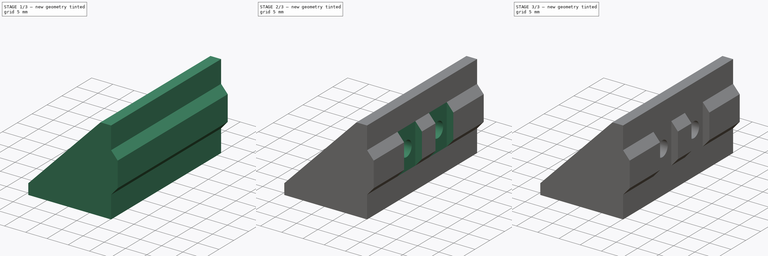
[diagram: build sequence overview — one tinted view per stage of 3, left to right]
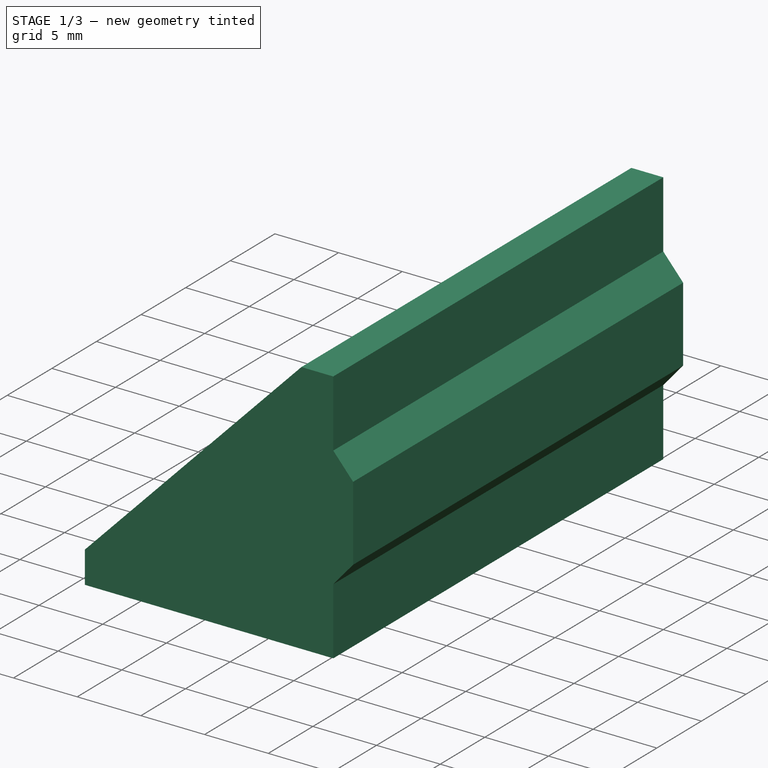
[diagram: stage 1 of 3 — iso view after this stage's code; geometry added in this stage tinted green]
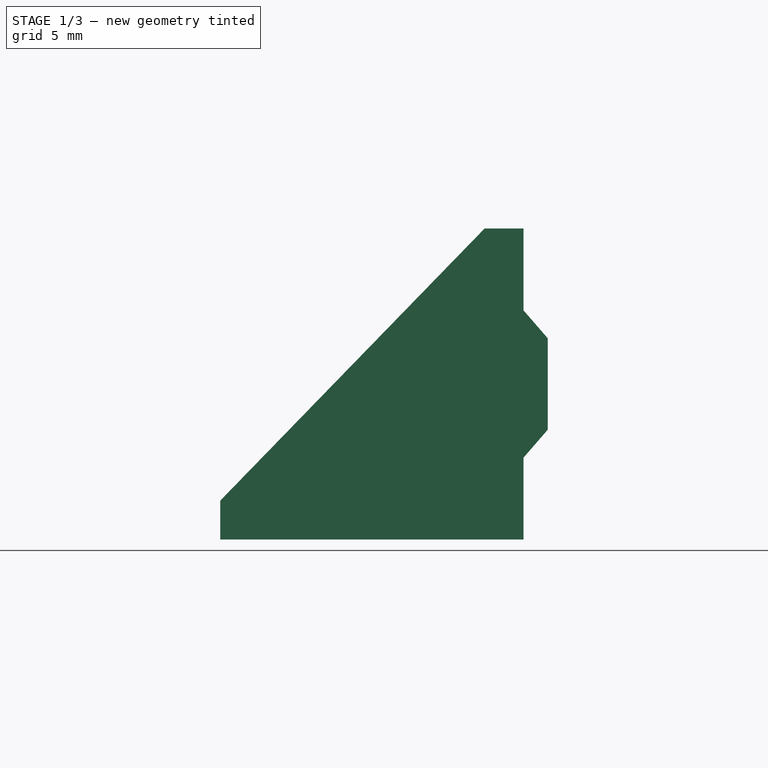
[diagram: stage 1 of 3 — front view after this stage's code; geometry added in this stage tinted green]
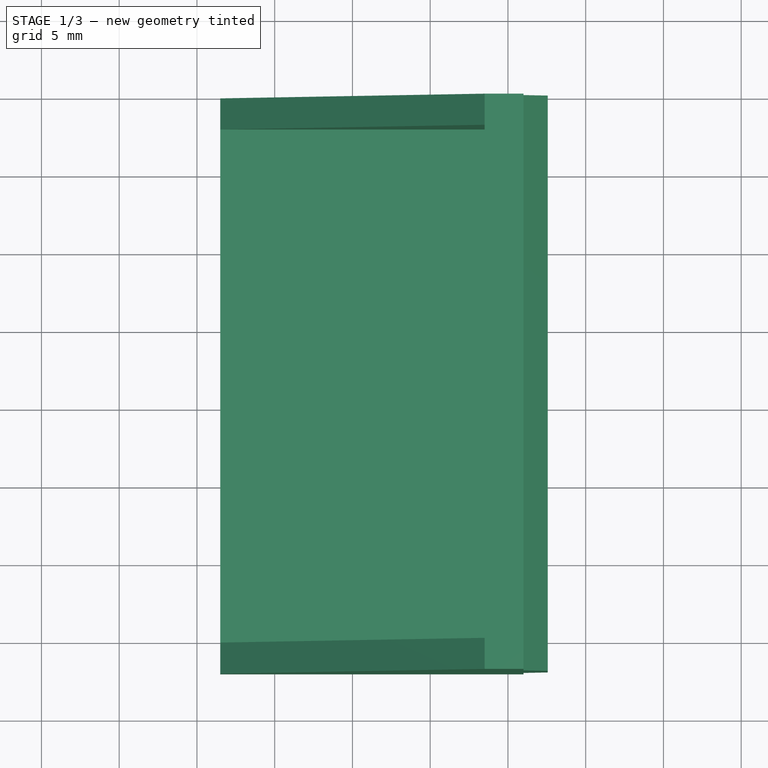
[diagram: stage 1 of 3 — top view after this stage's code; geometry added in this stage tinted green]
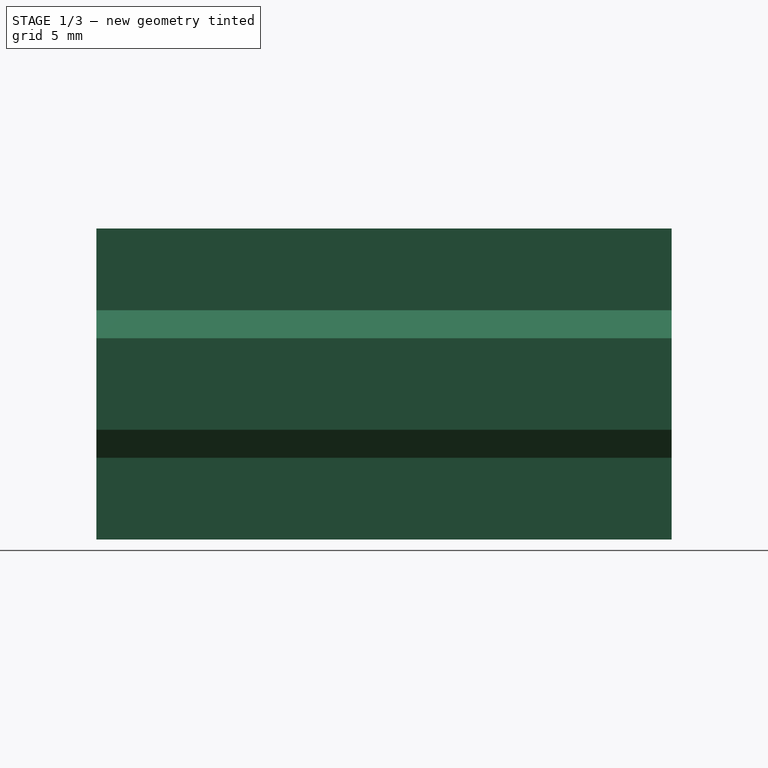
[diagram: stage 1 of 3 — right view after this stage's code; geometry added in this stage tinted green]
FCSTD DOCUMENT  (FreeCAD 0.21R33771 (Git))
Label: base-fixa-20-P2
License: All rights reserved
LicenseURL: https://en.wikipedia.org/wiki/All_rights_reserved
objects: Sketcher::SketchObject×8, PartDesign::Pocket×5, PartDesign::Pad×2, PartDesign::Fillet×1, PartDesign::Body×1
note: 25 computed .brp shape members not serialized (recipe doc carries the construction recipe); baked Part::Feature solids carry a one-line shape summary decoded from their .brp

FEATURE [Sketcher::SketchObject] Sketch
  FullyConstrained = true
  MapMode = 5
  Placement = pos=(0,0,0) rot=(1,0,0;1.5708rad)
  Support = -> [XZ_Plane]
  sketch-geometry (11):
    g0: LineSegment StartX=-8.5 StartY=-7.5 StartZ=0 EndX=-8.5 EndY=-10 EndZ=0
    g1: LineSegment StartX=-8.5 StartY=-10 StartZ=0 EndX=11 EndY=-10 EndZ=0
    g2: LineSegment StartX=11 StartY=-10 StartZ=0 EndX=11 EndY=10 EndZ=0
    g3: LineSegment StartX=11 StartY=10 StartZ=0 EndX=8.5 EndY=10 EndZ=0
    g4: LineSegment StartX=-8.5 StartY=-7.5 StartZ=0 EndX=8.5 EndY=-7.5 EndZ=0
    g5: LineSegment StartX=8.5 StartY=-7.5 StartZ=0 EndX=8.5 EndY=10 EndZ=0
    g6: LineSegment StartX=11 StartY=10 StartZ=0 EndX=11 EndY=4.74 EndZ=0
    g7: LineSegment StartX=11 StartY=4.74 StartZ=0 EndX=12.56 EndY=2.94 EndZ=0
    g8: LineSegment StartX=12.56 StartY=2.94 StartZ=0 EndX=12.56 EndY=-2.94 EndZ=0
    g9: LineSegment StartX=12.56 StartY=-2.94 StartZ=0 EndX=11 EndY=-4.74 EndZ=0
    g10: LineSegment StartX=11 StartY=-4.74 StartZ=0 EndX=11 EndY=-10 EndZ=0
  constraints (29):
    c: Vertical(g0)
    c: Coincident(g0,g1)
    c: Horizontal(g1)
    c: Coincident(g1,g2)
    c: Coincident(g2,g3)
    c: Horizontal(g3)
    c: Coincident(g0,g4)
    c: Coincident(g4,g5)
    c: Coincident(g5,g3)
    c: Vertical(g5)
    c: Symmetric(g1,g2,g-1)
    c: Symmetric(g0,g4,g-2)
    c: Equal(g0,g3)
    c: DistanceX(g3,g3) = 2.5
    c: DistanceY(g2,g2) = 20
    c: DistanceX(g4,g4) = 17
    c: Coincident(g3,g6)
    c: Coincident(g6,g7)
    c: Coincident(g7,g8)
    c: Coincident(g8,g9)
    c: Coincident(g9,g10)
    c: Coincident(g10,g1)
    c: Equal(g10,g6)
    c: Vertical(g10)
    c: Vertical(g6)
    c: Symmetric(g8,g7,g-1)
    c: DistanceY(g9,g6) = 9.48
    c: DistanceY(g8,g8) = 5.88
    c: DistanceX(g9,g8) = 1.56
FEATURE [PartDesign::Pad] Pad
  Direction = (0,-1,2e-16)
  Length = 37
  Length2 = 10
  Placement = pos=(0,0,0) rot=(1,0,0;1.5708rad)
  Profile = -> Sketch
  ReferenceAxis = -> Sketch [N_Axis]
  Type = 0
FEATURE [Sketcher::SketchObject] Sketch001
  ExternalGeometry = -> [Pad]
  FullyConstrained = true
  MapMode = 5
  Placement = pos=(0,-37,8.1e-15) rot=(1,0,0;1.5708rad)
  Support = -> [Pad]
  sketch-geometry (3):
    g0: LineSegment StartX=8.5 StartY=10 StartZ=0 EndX=-8.5 EndY=-7.5 EndZ=0
    g1: LineSegment StartX=-8.5 StartY=-7.5 StartZ=0 EndX=8.5 EndY=-7.5 EndZ=0
    g2: LineSegment StartX=8.5 StartY=-7.5 StartZ=0 EndX=8.5 EndY=10 EndZ=0
  constraints (6):
    c: Coincident(g0,g1)
    c: Coincident(g1,g2)
    c: Coincident(g2,g0)
    c: Coincident(g0,g-4)
    c: Coincident(g1,g-4)
    c: Coincident(g0,g-3)
FEATURE [PartDesign::Pad] Pad001
  BaseFeature = -> Pad
  Direction = (0,-1,2e-16)
  Length = 10
  Length2 = 10
  Placement = pos=(0,0,0) rot=(1,0,0;1.5708rad)
  Profile = -> Sketch001
  ReferenceAxis = -> Sketch001 [N_Axis]
  Type = 3
  UpToFace = -> Pad [Face11]
FEATURE [Sketcher::SketchObject] Sketch002
  ExternalGeometry = -> [Pad001]
  FullyConstrained = true
  MapMode = 5
  Placement = pos=(0,4.4e-15,10) rot=(0,0,1;3.14159rad)
  Support = -> [Pad001]
  sketch-geometry (5):
    g0: LineSegment StartX=-8.5 StartY=35 StartZ=0 EndX=8.5 EndY=35 EndZ=0
    g1: LineSegment StartX=8.5 StartY=35 StartZ=0 EndX=8.5 EndY=2 EndZ=0
    g2: LineSegment StartX=8.5 StartY=2 StartZ=0 EndX=-8.5 EndY=2 EndZ=0
    g3: LineSegment StartX=-8.5 StartY=2 StartZ=0 EndX=-8.5 EndY=35 EndZ=0
    g4: LineSegment StartX=-8.5 StartY=18.5 StartZ=0 EndX=8.5 EndY=18.5 EndZ=0
  constraints (14):
    c: Coincident(g0,g1)
    c: Coincident(g1,g2)
    c: Coincident(g2,g3)
    c: Coincident(g3,g0)
    c: Horizontal(g0)
    c: Horizontal(g2)
    c: Vertical(g3)
    c: PointOnObject(g0,g-3)
    c: PointOnObject(g4,g-4)
    c: PointOnObject(g4,g-3)
    c: Symmetric(g-3,g-3,g4)
    c: Symmetric(g0,g1,g4)
    c: PointOnObject(g0,g-4)
    c: DistanceY(g0,g-4) = 2
FEATURE [PartDesign::Pocket] Pocket
  BaseFeature = -> Pad001
  Direction = (0,-2e-16,-1)
  Length = 17.5
  Length2 = 5
  Placement = pos=(0,0,0) rot=(1,0,0;1.5708rad)
  Profile = -> Sketch002
  ReferenceAxis = -> Sketch002 [N_Axis]
  Type = 0
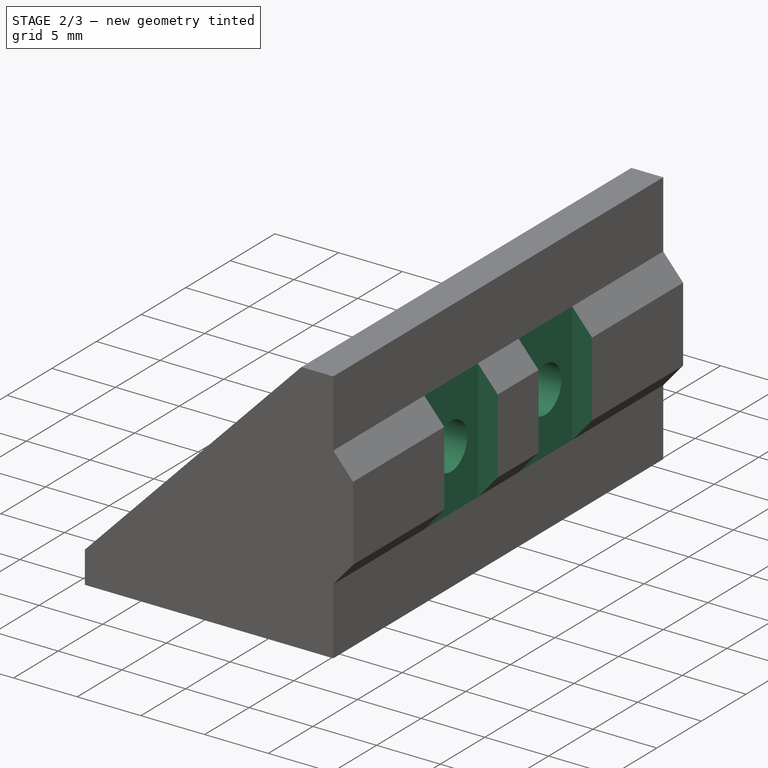
[diagram: stage 2 of 3 — iso view after this stage's code; geometry added in this stage tinted green]
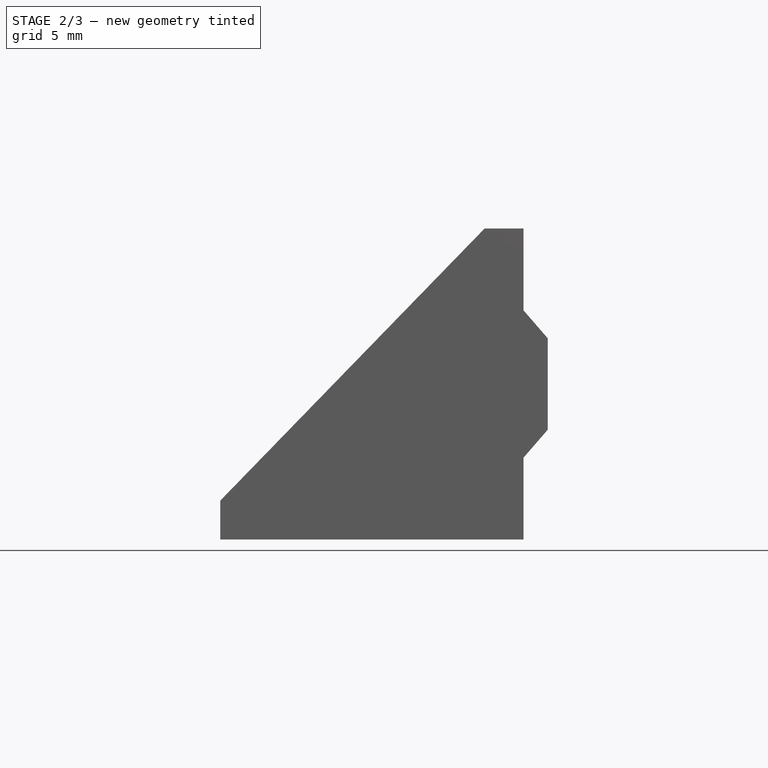
[diagram: stage 2 of 3 — front view after this stage's code; geometry added in this stage tinted green]
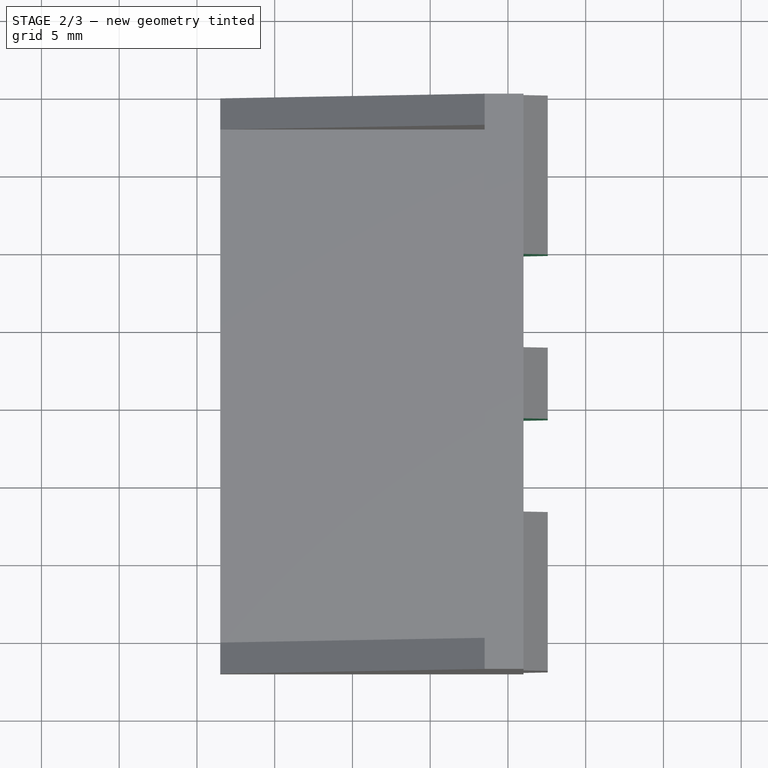
[diagram: stage 2 of 3 — top view after this stage's code; geometry added in this stage tinted green]
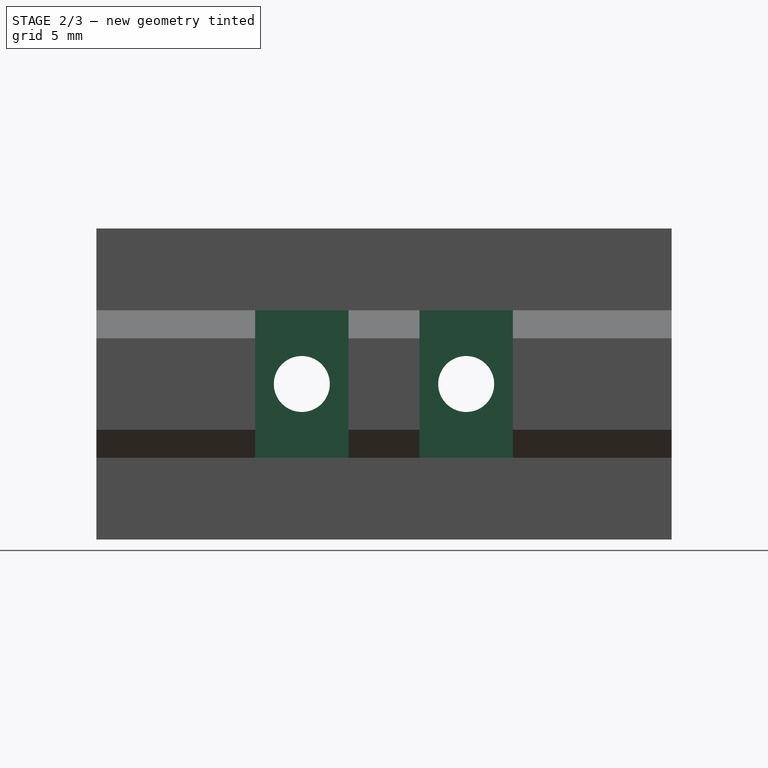
[diagram: stage 2 of 3 — right view after this stage's code; geometry added in this stage tinted green]
FEATURE [Sketcher::SketchObject] Sketch003
  ExternalGeometry = -> [Pocket]
  FullyConstrained = true
  MapMode = 5
  Placement = pos=(12.56,0,0) rot=(0.707107,0,0.707107;3.14159rad)
  Support = -> [Pocket]
  sketch-geometry (4):
    g0: LineSegment StartX=-2.94 StartY=18.5 StartZ=0 EndX=2.94 EndY=18.5 EndZ=0
    g1: LineSegment StartX=0 StartY=23.786 StartZ=0 EndX=-1e-15 EndY=13.214 EndZ=0
    g2: Circle CenterX=0 CenterY=23.786 CenterZ=0 NormalX=0 NormalY=0 NormalZ=1 AngleXU=0 Radius=1.8
    g3: Circle CenterX=-1e-15 CenterY=13.214 CenterZ=0 NormalX=0 NormalY=0 NormalZ=1 AngleXU=0 Radius=1.8
  constraints (10):
    c: Symmetric(g-4,g-4,g0)
    c: PointOnObject(g0,g-4)
    c: PointOnObject(g0,g-5)
    c: PointOnObject(g1,g-2)
    c: Symmetric(g1,g1,g0)
    c: Coincident(g2,g1)
    c: Coincident(g3,g1)
    c: Equal(g3,g2)
    c: Diameter(g2) = 3.6
    c: DistanceY(g1,g1) = 10.572
FEATURE [PartDesign::Pocket] Pocket001
  BaseFeature = -> Pocket
  Direction = (-1,0,2e-16)
  Length = 5
  Length2 = 5
  Placement = pos=(0,0,0) rot=(1,0,0;1.5708rad)
  Profile = -> Sketch003
  ReferenceAxis = -> Sketch003 [N_Axis]
  Type = 1
FEATURE [Sketcher::SketchObject] Sketch004
  ExternalGeometry = -> [Pocket001]
  FullyConstrained = true
  MapMode = 5
  Placement = pos=(12.56,0,0) rot=(0.707107,0,0.707107;3.14159rad)
  Support = -> [Pocket001]
  sketch-geometry (10):
    g0: Circle CenterX=0 CenterY=23.786 CenterZ=0 NormalX=0 NormalY=0 NormalZ=1 AngleXU=0 Radius=3
    g1: Circle CenterX=-1e-15 CenterY=13.214 CenterZ=0 NormalX=0 NormalY=0 NormalZ=1 AngleXU=0 Radius=3
    g2: LineSegment StartX=-4.74 StartY=26.786 StartZ=0 EndX=4.74 EndY=26.786 EndZ=0
    g3: LineSegment StartX=4.74 StartY=26.786 StartZ=0 EndX=4.74 EndY=20.786 EndZ=0
    g4: LineSegment StartX=4.74 StartY=20.786 StartZ=0 EndX=-4.74 EndY=20.786 EndZ=0
    g5: LineSegment StartX=-4.74 StartY=20.786 StartZ=0 EndX=-4.74 EndY=26.786 EndZ=0
    g6: LineSegment StartX=-4.74 StartY=16.214 StartZ=0 EndX=4.74 EndY=16.214 EndZ=0
    g7: LineSegment StartX=4.74 StartY=16.214 StartZ=0 EndX=4.74 EndY=10.214 EndZ=0
    g8: LineSegment StartX=4.74 StartY=10.214 StartZ=0 EndX=-4.74 EndY=10.214 EndZ=0
    g9: LineSegment StartX=-4.74 StartY=10.214 StartZ=0 EndX=-4.74 EndY=16.214 EndZ=0
  constraints (28):
    c: Coincident(g0,g-3)
    c: Coincident(g1,g-4)
    c: Equal(g1,g0)
    c: Diameter(g1) = 6
    c: Coincident(g2,g3)
    c: Coincident(g3,g4)
    c: Coincident(g4,g5)
    c: Coincident(g5,g2)
    c: Horizontal(g2)
    c: Horizontal(g4)
    c: Vertical(g3)
    c: Vertical(g5)
    c: PointOnObject(g3,g-5)
    c: Coincident(g6,g7)
    c: Coincident(g7,g8)
    c: Coincident(g8,g9)
    c: Coincident(g9,g6)
    c: Horizontal(g6)
    c: Horizontal(g8)
    c: Vertical(g7)
    c: Vertical(g9)
    c: PointOnObject(g6,g-6)
    c: PointOnObject(g7,g-5)
    c: PointOnObject(g4,g-6)
    c: Tangent(g1,g6)
    c: Tangent(g8,g1)
    c: Tangent(g4,g0)
    c: Tangent(g0,g2)
FEATURE [PartDesign::Pocket] Pocket002
  BaseFeature = -> Pocket001
  Direction = (-1,0,2e-16)
  Length = 0
  Length2 = 5
  Placement = pos=(0,0,0) rot=(1,0,0;1.5708rad)
  Profile = -> Sketch004
  ReferenceAxis = -> Sketch004 [N_Axis]
  Type = 3
  UpToFace = -> Pocket001 [Face18]
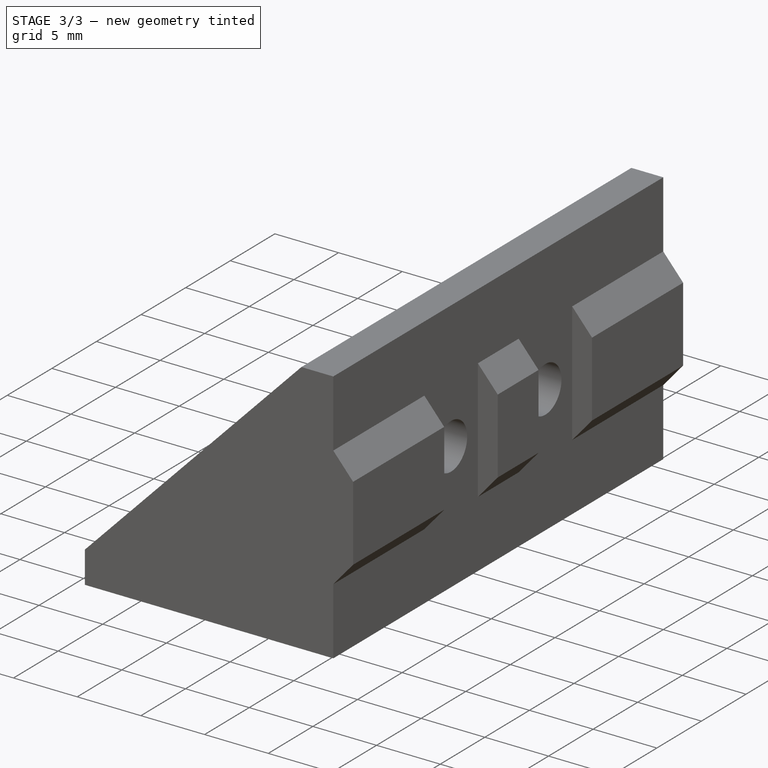
[diagram: stage 3 of 3 — iso view after this stage's code; geometry added in this stage tinted green]
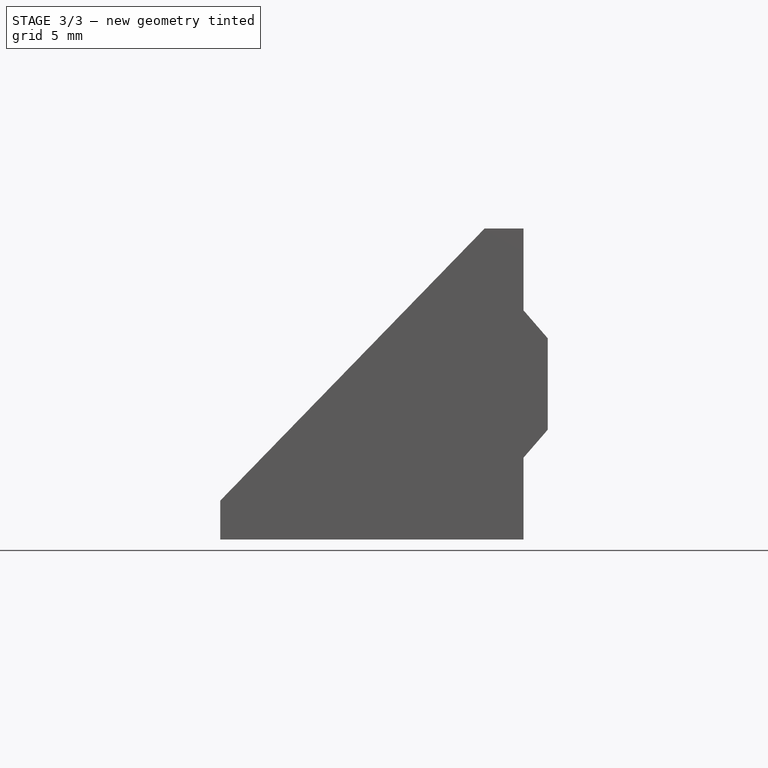
[diagram: stage 3 of 3 — front view after this stage's code; geometry added in this stage tinted green]
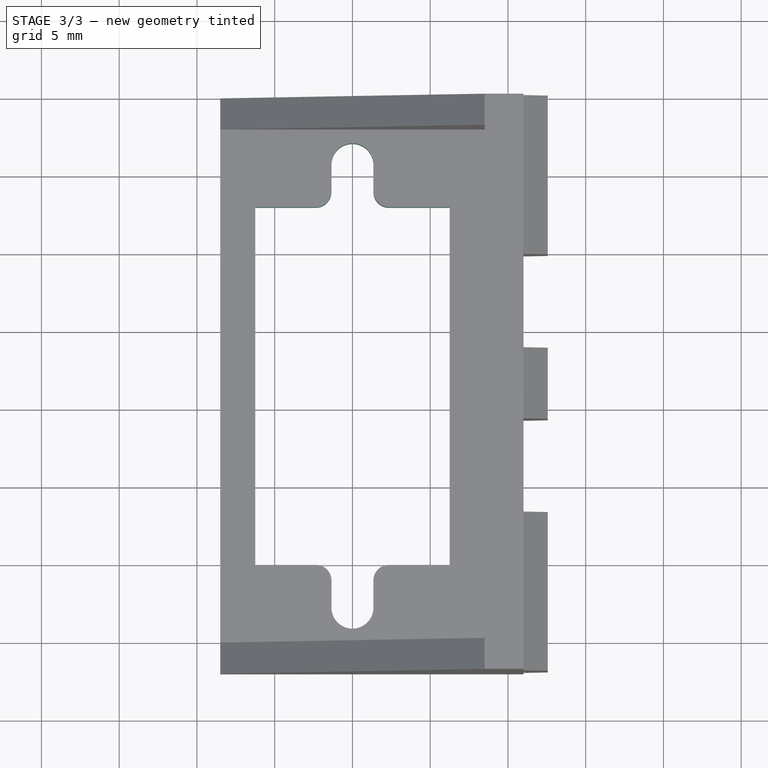
[diagram: stage 3 of 3 — top view after this stage's code; geometry added in this stage tinted green]
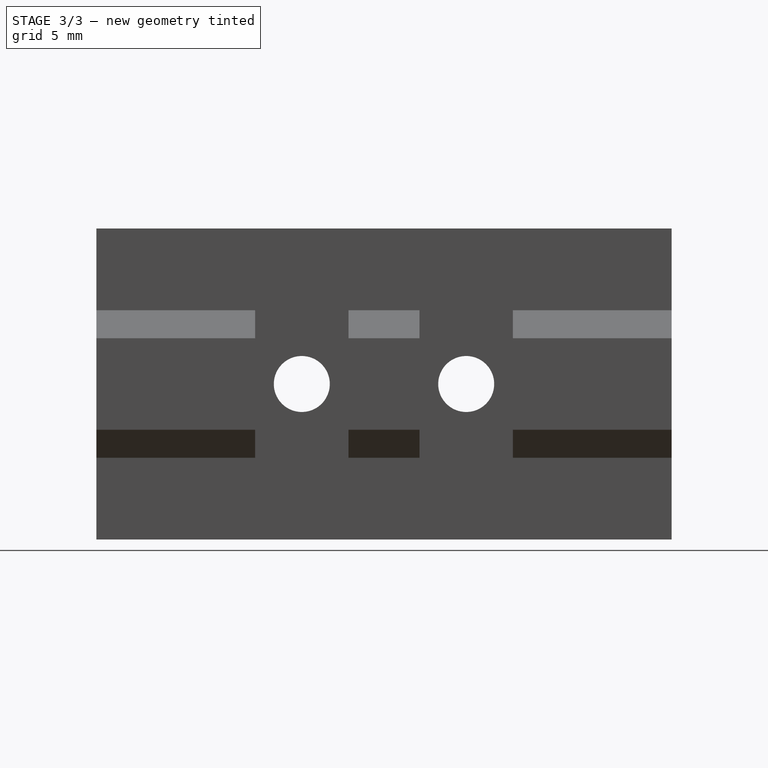
[diagram: stage 3 of 3 — right view after this stage's code; geometry added in this stage tinted green]
FEATURE [Sketcher::SketchObject] Sketch005
  ExternalGeometry = -> [Pocket002]
  FullyConstrained = true
  MapMode = 5
  Placement = pos=(0,-1.6e-15,-7.5) rot=(0,0,1;3.14159rad)
  Support = -> [Pocket002]
  sketch-geometry (6):
    g0: LineSegment StartX=-6.25 StartY=30 StartZ=0 EndX=6.25 EndY=30 EndZ=0
    g1: LineSegment StartX=6.25 StartY=30 StartZ=0 EndX=6.25 EndY=7 EndZ=0
    g2: LineSegment StartX=6.25 StartY=7 StartZ=0 EndX=-6.25 EndY=7 EndZ=0
    g3: LineSegment StartX=-6.25 StartY=7 StartZ=0 EndX=-6.25 EndY=30 EndZ=0
    g4: LineSegment StartX=-8.5 StartY=18.5 StartZ=0 EndX=8.5 EndY=18.5 EndZ=0
    g5: LineSegment StartX=6e-16 StartY=30 StartZ=0 EndX=1.9e-15 EndY=7 EndZ=0
  constraints (18):
    c: Coincident(g0,g1)
    c: Coincident(g1,g2)
    c: Coincident(g2,g3)
    c: Coincident(g3,g0)
    c: Horizontal(g0)
    c: Horizontal(g2)
    c: Vertical(g1)
    c: Vertical(g3)
    c: Symmetric(g-6,g-5,g4)
    c: Symmetric(g5,g5,g4)
    c: Symmetric(g4,g4,g5)
    c: PointOnObject(g4,g-4)
    c: PointOnObject(g4,g-3)
    c: PointOnObject(g5,g0)
    c: PointOnObject(g5,g2)
    c: DistanceX(g0,g0) = 12.5
    c: DistanceY(g1,g1) = 23
    c: Symmetric(g1,g2,g5)
FEATURE [PartDesign::Pocket] Pocket003
  BaseFeature = -> Pocket002
  Direction = (0,-2e-16,-1)
  Length = 5
  Length2 = 5
  Placement = pos=(0,0,0) rot=(1,0,0;1.5708rad)
  Profile = -> Sketch005
  ReferenceAxis = -> Sketch005 [N_Axis]
  Type = 1
FEATURE [Sketcher::SketchObject] Sketch006
  ExternalGeometry = -> [Pocket003]
  FullyConstrained = true
  MapMode = 5
  Placement = pos=(0,-1.6e-15,-7.5) rot=(0,0,1;3.14159rad)
  Support = -> [Pocket003]
  sketch-geometry (8):
    g0: LineSegment StartX=0 StartY=32.75 StartZ=0 EndX=0 EndY=4.25 EndZ=0
    g1: LineSegment StartX=-6.25 StartY=18.5 StartZ=0 EndX=6.25 EndY=18.5 EndZ=0
    g2: Circle CenterX=0 CenterY=32.75 CenterZ=0 NormalX=0 NormalY=0 NormalZ=1 AngleXU=0 Radius=1.35
    g3: Circle CenterX=0 CenterY=4.25 CenterZ=0 NormalX=0 NormalY=0 NormalZ=1 AngleXU=0 Radius=1.35
    g4: ArcOfCircle CenterX=0 CenterY=32.75 CenterZ=0 NormalX=0 NormalY=0 NormalZ=1 AngleXU=0 Radius=1.35 StartAngle=1.35e-14 EndAngle=3.14159
    g5: ArcOfCircle CenterX=0 CenterY=4.25 CenterZ=0 NormalX=0 NormalY=0 NormalZ=1 AngleXU=0 Radius=1.35 StartAngle=3.14159 EndAngle=6.28319
    g6: LineSegment StartX=-1.35 StartY=32.75 StartZ=0 EndX=-1.35 EndY=4.25 EndZ=0
    g7: LineSegment StartX=1.35 StartY=4.25 StartZ=0 EndX=1.35 EndY=32.75 EndZ=0
  constraints (19):
    c: Symmetric(g-5,g-4,g1)
    c: PointOnObject(g1,g-6)
    c: PointOnObject(g1,g-4)
    c: Symmetric(g0,g0,g1)
    c: DistanceY(g-8,g-8) = 33
    c: Coincident(g2,g0)
    c: PointOnObject(g3,g-2)
    c: Equal(g3,g2)
    c: Diameter(g2) = 2.7
    c: DistanceY(g3,g2) = 28.5
    c: Coincident(g3,g0)
    c: Tangent(g4,g6) = -1.5708
    c: Tangent(g6,g5) = -1.5708
    c: Tangent(g5,g7) = -1.5708
    c: Tangent(g7,g4) = -1.5708
    c: Equal(g4,g5)
    c: Coincident(g4,g0)
    c: Equal(g4,g2)
    c: Coincident(g5,g0)
FEATURE [PartDesign::Pocket] Pocket004
  BaseFeature = -> Pocket003
  Direction = (0,-4e-16,-1)
  Length = 5
  Length2 = 5
  Placement = pos=(0,0,0) rot=(1,0,0;1.5708rad)
  Profile = -> Sketch006
  ReferenceAxis = -> Sketch006 [N_Axis]
  Type = 1
FEATURE [PartDesign::Fillet] Fillet
  Base = -> Pocket004 [Edge75,Edge72,Edge66,Edge69]
  BaseFeature = -> Pocket004
  Placement = pos=(0,0,0) rot=(1,0,0;1.5708rad)
  Radius = 1
  SupportTransform = false
  UseAllEdges = false
FEATURE [Sketcher::SketchObject] Sketch007
  ExternalGeometry = -> [Fillet]
  FullyConstrained = true
  MapMode = 5
  Placement = pos=(0,-4.4e-15,-10) rot=(1,0,0;3.14159rad)
  Support = -> [Fillet]
  constraints (4):
    c: DistanceY(g-3,g-3) = 23
    c: DistanceX(g-3,g-4) = 12.5
    c: DistanceY(g-6,g-5) = 28.5
    c: Radius(g-6) = 1.35
FEATURE [PartDesign::Body] Body
  Group = -> [Sketch,Pad,Sketch001,Pad001,Sketch002,Pocket,Sketch003,Pocket001,Sketch004,Pocket002,Sketch005,Pocket003,Sketch006,Pocket004,Fillet,Sketch007]
  Origin = -> Origin
  Tip = -> Fillet
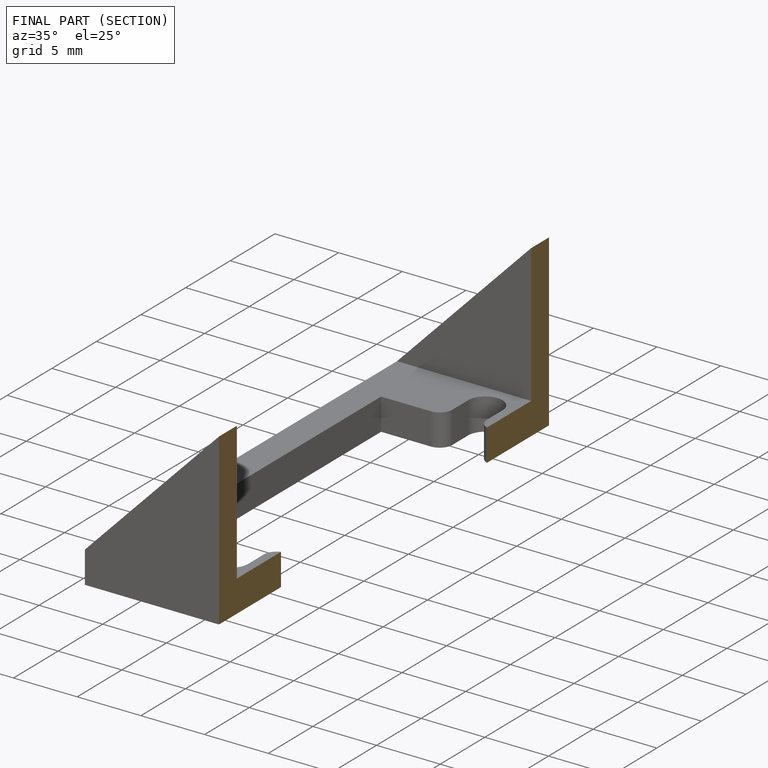
[diagram: finished part — half-section view (interior)]
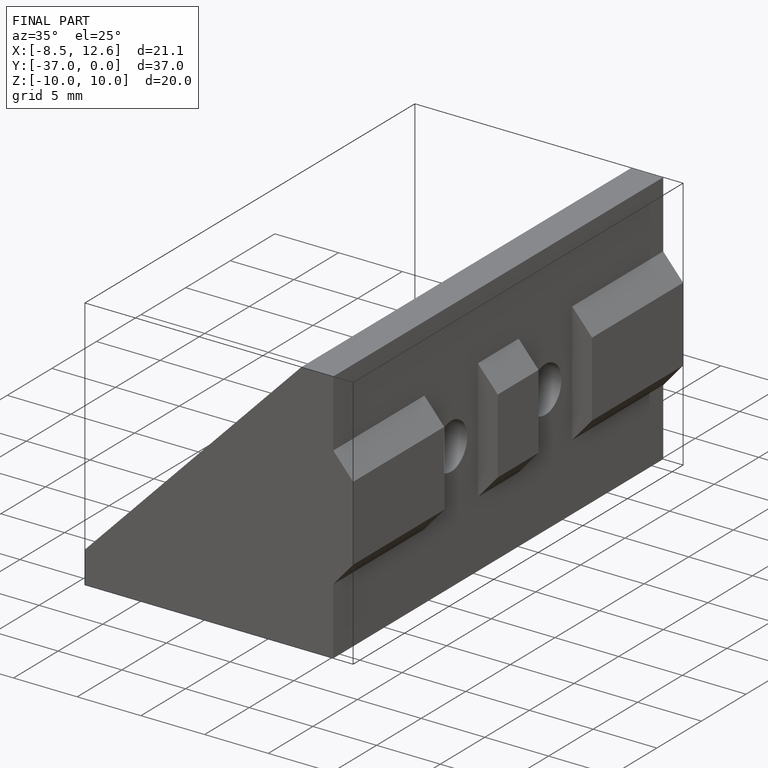
[diagram: finished part — iso view with bounding-box wireframe]
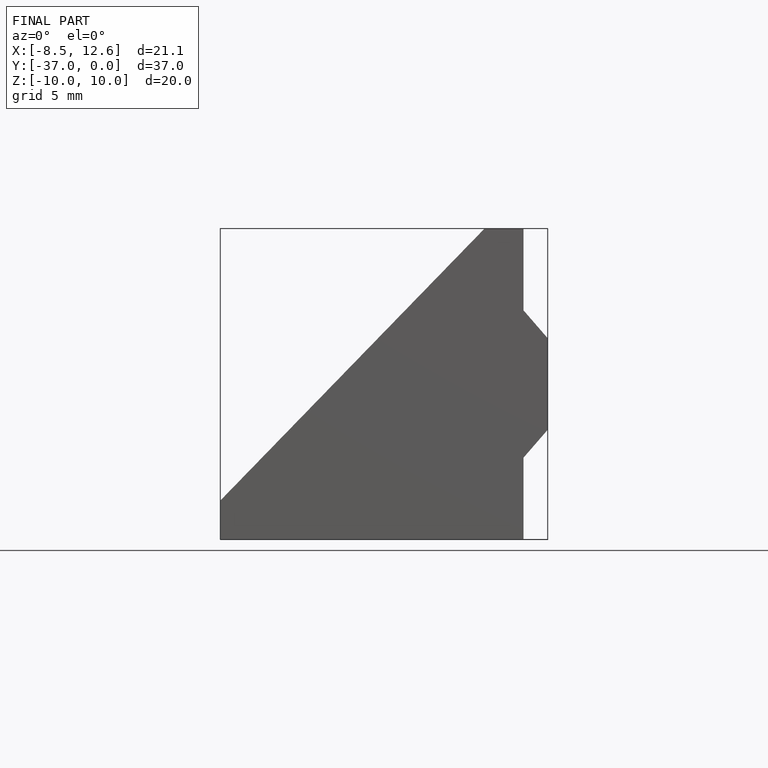
[diagram: finished part — front view with bounding-box wireframe]
